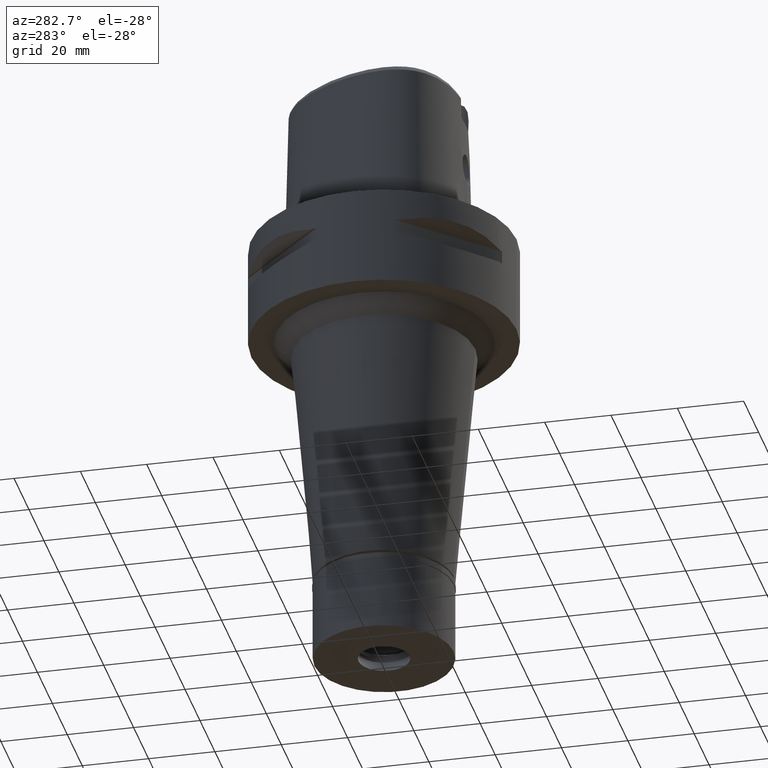
[diagram: clean part render]
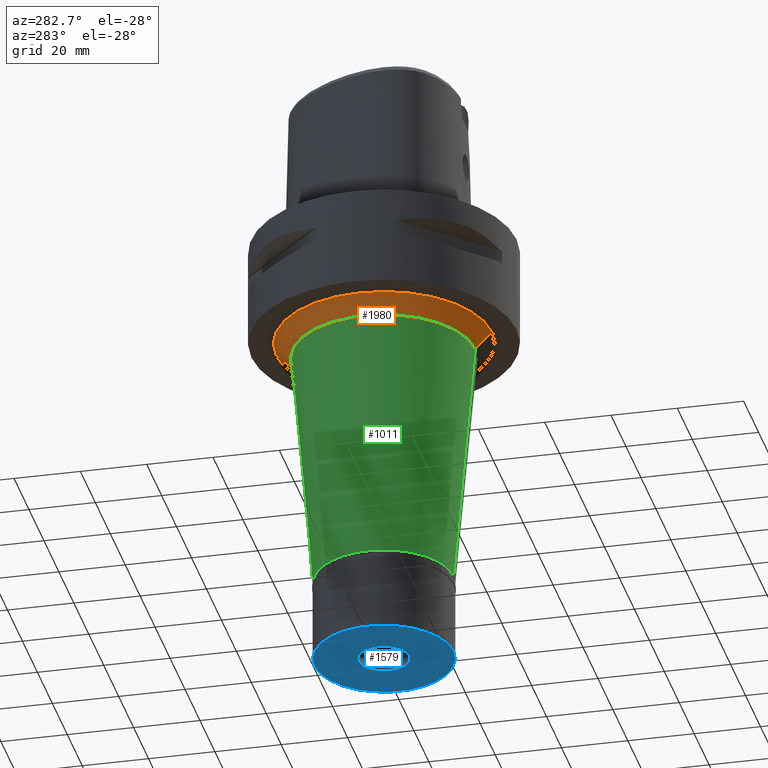
[diagram: same view with three faces highlighted in distinct colors, each labeled with its STEP entity id]
A machine part, auxiliary view with three faces highlighted in distinct colors.
Their STEP definitions:

[orange] entity #1980 — the highlighted conical surface has half-angle 45 deg.
#79 = DIRECTION ( 'NONE',  ( 0.0000000000000000000, 0.0000000000000000000, -1.000000000000000000 ) ) ;
#394 = EDGE_CURVE ( 'NONE', #1149, #4725, #4228, .T. ) ;
#438 = CARTESIAN_POINT ( 'NONE',  ( 0.0000000000000000000, -27.55290089809000165, -35.00000000000000000 ) ) ;
#446 = LINE ( 'NONE', #1669, #3144 ) ;
#828 = CARTESIAN_POINT ( 'NONE',  ( 0.0000000000000000000, 0.0000000000000000000, -35.00000000000000000 ) ) ;
#857 = EDGE_CURVE ( 'NONE', #4725, #2738, #446, .T. ) ;
#1149 = VERTEX_POINT ( 'NONE', #4615 ) ;
#1385 = CIRCLE ( 'NONE', #4226, 27.55290089809000165 ) ;
#1423 = CARTESIAN_POINT ( 'NONE',  ( 0.0000000000000000000, 0.0000000000000000000, -32.50000000000000000 ) ) ;
#1461 = ORIENTED_EDGE ( 'NONE', *, *, #857, .T. ) ;
#1562 = EDGE_CURVE ( 'NONE', #2077, #2738, #1385, .T. ) ;
#1669 = CARTESIAN_POINT ( 'NONE',  ( 0.0000000000000000000, 32.55290089809000165, -30.00000000000000000 ) ) ;
#1706 = CARTESIAN_POINT ( 'NONE',  ( 0.0000000000000000000, 0.0000000000000000000, -30.00000000000000000 ) ) ;
#1754 = DIRECTION ( 'NONE',  ( 0.0000000000000000000, 0.0000000000000000000, -1.000000000000000000 ) ) ;
#1870 = AXIS2_PLACEMENT_3D ( 'NONE', #1423, #2238, #2648 ) ;
#1980 = ADVANCED_FACE ( 'NONE', ( #5027 ), #4627, .T. ) ;
#2025 = DIRECTION ( 'NONE',  ( 0.0000000000000000000, -0.7071067811862974395, -0.7071067811867974839 ) ) ;
#2077 = VERTEX_POINT ( 'NONE', #438 ) ;
#2142 = CARTESIAN_POINT ( 'NONE',  ( 0.0000000000000000000, 27.55290089809000165, -35.00000000000000000 ) ) ;
#2238 = DIRECTION ( 'NONE',  ( 0.0000000000000000000, 0.0000000000000000000, 1.000000000000000000 ) ) ;
#2309 = DIRECTION ( 'NONE',  ( 0.0000000000000000000, 0.7071067811862974395, -0.7071067811867974839 ) ) ;
#2335 = ORIENTED_EDGE ( 'NONE', *, *, #1562, .F. ) ;
#2601 = CARTESIAN_POINT ( 'NONE',  ( 0.0000000000000000000, 32.55290089809000165, -30.00000000000000000 ) ) ;
#2640 = LINE ( 'NONE', #3902, #4624 ) ;
#2648 = DIRECTION ( 'NONE',  ( 0.0000000000000000000, 1.000000000000000000, 0.0000000000000000000 ) ) ;
#2738 = VERTEX_POINT ( 'NONE', #2142 ) ;
#2762 = ORIENTED_EDGE ( 'NONE', *, *, #4939, .F. ) ;
#3100 = EDGE_LOOP ( 'NONE', ( #2335, #2762, #4679, #1461 ) ) ;
#3144 = VECTOR ( 'NONE', #2025, 1000.000000000000114 ) ;
#3308 = AXIS2_PLACEMENT_3D ( 'NONE', #1706, #1754, #4170 ) ;
#3675 = DIRECTION ( 'NONE',  ( 0.0000000000000000000, -1.000000000000000000, 0.0000000000000000000 ) ) ;
#3902 = CARTESIAN_POINT ( 'NONE',  ( 0.0000000000000000000, -32.55290089809000165, -30.00000000000000000 ) ) ;
#4170 = DIRECTION ( 'NONE',  ( 0.0000000000000000000, -1.000000000000000000, 0.0000000000000000000 ) ) ;
#4226 = AXIS2_PLACEMENT_3D ( 'NONE', #828, #79, #3675 ) ;
#4228 = CIRCLE ( 'NONE', #3308, 32.55290089809000165 ) ;
#4615 = CARTESIAN_POINT ( 'NONE',  ( 0.0000000000000000000, -32.55290089809000165, -30.00000000000000000 ) ) ;
#4624 = VECTOR ( 'NONE', #2309, 1000.000000000000114 ) ;
#4627 = CONICAL_SURFACE ( 'NONE', #1870, 30.05290089809000165, 0.7853981633972997312 ) ;
#4679 = ORIENTED_EDGE ( 'NONE', *, *, #394, .T. ) ;
#4725 = VERTEX_POINT ( 'NONE', #2601 ) ;
#4939 = EDGE_CURVE ( 'NONE', #1149, #2077, #2640, .T. ) ;
#5027 = FACE_OUTER_BOUND ( 'NONE', #3100, .T. ) ;

[blue] entity #1579 — the highlighted planar face has unit normal (0, 0, -1).
#378 = VERTEX_POINT ( 'NONE', #4484 ) ;
#428 = ORIENTED_EDGE ( 'NONE', *, *, #3232, .F. ) ;
#720 = CARTESIAN_POINT ( 'NONE',  ( 0.0000000000000000000, 0.0000000000000000000, -24.29999999999999716 ) ) ;
#1094 = ORIENTED_EDGE ( 'NONE', *, *, #4274, .F. ) ;
#1251 = CARTESIAN_POINT ( 'NONE',  ( 0.0000000000000000000, 0.0000000000000000000, -24.29999999999999716 ) ) ;
#1302 = DIRECTION ( 'NONE',  ( 0.0000000000000000000, -1.000000000000000000, 0.0000000000000000000 ) ) ;
#1408 = CIRCLE ( 'NONE', #4339, 21.00000000000000000 ) ;
#1579 = ADVANCED_FACE ( 'NONE', ( #4875, #2021 ), #4827, .T. ) ;
#1621 = DIRECTION ( 'NONE',  ( 0.0000000000000000000, 0.0000000000000000000, -1.000000000000000000 ) ) ;
#1821 = AXIS2_PLACEMENT_3D ( 'NONE', #3666, #2846, #4096 ) ;
#1987 = EDGE_LOOP ( 'NONE', ( #2894, #428 ) ) ;
#1998 = DIRECTION ( 'NONE',  ( 0.0000000000000000000, 0.0000000000000000000, -1.000000000000000000 ) ) ;
#2021 = FACE_BOUND ( 'NONE', #2148, .T. ) ;
#2127 = DIRECTION ( 'NONE',  ( 0.0000000000000000000, -1.000000000000000000, 0.0000000000000000000 ) ) ;
#2148 = EDGE_LOOP ( 'NONE', ( #1094, #4916 ) ) ;
#2186 = VERTEX_POINT ( 'NONE', #3174 ) ;
#2394 = AXIS2_PLACEMENT_3D ( 'NONE', #4461, #4046, #2127 ) ;
#2747 = CARTESIAN_POINT ( 'NONE',  ( 0.0000000000000000000, -21.00000000000000000, -24.29999999999999716 ) ) ;
#2846 = DIRECTION ( 'NONE',  ( 0.0000000000000000000, 0.0000000000000000000, -1.000000000000000000 ) ) ;
#2894 = ORIENTED_EDGE ( 'NONE', *, *, #4654, .F. ) ;
#2935 = DIRECTION ( 'NONE',  ( 0.0000000000000000000, 0.0000000000000000000, 1.000000000000000000 ) ) ;
#2985 = CIRCLE ( 'NONE', #1821, 7.700000000000000178 ) ;
#3044 = CIRCLE ( 'NONE', #2394, 21.00000000000000000 ) ;
#3174 = CARTESIAN_POINT ( 'NONE',  ( 0.0000000000000000000, 7.700000000000000178, -24.29999999999999716 ) ) ;
#3211 = AXIS2_PLACEMENT_3D ( 'NONE', #3561, #1621, #3219 ) ;
#3219 = DIRECTION ( 'NONE',  ( 0.0000000000000000000, -1.000000000000000000, 0.0000000000000000000 ) ) ;
#3220 = VERTEX_POINT ( 'NONE', #3258 ) ;
#3232 = EDGE_CURVE ( 'NONE', #4729, #3220, #3044, .T. ) ;
#3258 = CARTESIAN_POINT ( 'NONE',  ( 0.0000000000000000000, 21.00000000000000000, -24.29999999999999716 ) ) ;
#3286 = CIRCLE ( 'NONE', #3211, 7.700000000000000178 ) ;
#3561 = CARTESIAN_POINT ( 'NONE',  ( 0.0000000000000000000, 0.0000000000000000000, -24.29999999999999716 ) ) ;
#3666 = CARTESIAN_POINT ( 'NONE',  ( 0.0000000000000000000, 0.0000000000000000000, -24.29999999999999716 ) ) ;
#4046 = DIRECTION ( 'NONE',  ( 0.0000000000000000000, 0.0000000000000000000, 1.000000000000000000 ) ) ;
#4096 = DIRECTION ( 'NONE',  ( 0.0000000000000000000, 1.000000000000000000, 0.0000000000000000000 ) ) ;
#4274 = EDGE_CURVE ( 'NONE', #2186, #378, #2985, .T. ) ;
#4339 = AXIS2_PLACEMENT_3D ( 'NONE', #720, #2935, #4543 ) ;
#4461 = CARTESIAN_POINT ( 'NONE',  ( 0.0000000000000000000, 0.0000000000000000000, -24.29999999999999716 ) ) ;
#4484 = CARTESIAN_POINT ( 'NONE',  ( 0.0000000000000000000, -7.700000000000000178, -24.29999999999999716 ) ) ;
#4543 = DIRECTION ( 'NONE',  ( 0.0000000000000000000, 1.000000000000000000, 0.0000000000000000000 ) ) ;
#4654 = EDGE_CURVE ( 'NONE', #3220, #4729, #1408, .T. ) ;
#4729 = VERTEX_POINT ( 'NONE', #2747 ) ;
#4827 = PLANE ( 'NONE',  #4889 ) ;
#4875 = FACE_OUTER_BOUND ( 'NONE', #1987, .T. ) ;
#4889 = AXIS2_PLACEMENT_3D ( 'NONE', #1251, #1998, #1302 ) ;
#4916 = ORIENTED_EDGE ( 'NONE', *, *, #5102, .F. ) ;
#5102 = EDGE_CURVE ( 'NONE', #378, #2186, #3286, .T. ) ;

[green] entity #1011 — the highlighted conical surface has half-angle 5 deg.
#67 = AXIS2_PLACEMENT_3D ( 'NONE', #4591, #3829, #198 ) ;
#79 = DIRECTION ( 'NONE',  ( 0.0000000000000000000, 0.0000000000000000000, -1.000000000000000000 ) ) ;
#144 = LINE ( 'NONE', #870, #4755 ) ;
#159 = CARTESIAN_POINT ( 'NONE',  ( 0.0000000000000000000, -21.00000000000000000, -109.8999999999999915 ) ) ;
#198 = DIRECTION ( 'NONE',  ( 0.0000000000000000000, 1.000000000000000000, 0.0000000000000000000 ) ) ;
#258 = CARTESIAN_POINT ( 'NONE',  ( 0.0000000000000000000, -27.55290089809000165, -35.00000000000000000 ) ) ;
#438 = CARTESIAN_POINT ( 'NONE',  ( 0.0000000000000000000, -27.55290089809000165, -35.00000000000000000 ) ) ;
#703 = DIRECTION ( 'NONE',  ( 0.0000000000000000000, 0.08715574274764407992, -0.9961946980917467664 ) ) ;
#714 = VERTEX_POINT ( 'NONE', #4053 ) ;
#828 = CARTESIAN_POINT ( 'NONE',  ( 0.0000000000000000000, 0.0000000000000000000, -35.00000000000000000 ) ) ;
#870 = CARTESIAN_POINT ( 'NONE',  ( 0.0000000000000000000, 27.55290089809000165, -35.00000000000000000 ) ) ;
#990 = FACE_OUTER_BOUND ( 'NONE', #3997, .T. ) ;
#1011 = ADVANCED_FACE ( 'NONE', ( #990 ), #3388, .T. ) ;
#1171 = CIRCLE ( 'NONE', #4092, 21.00000000000000000 ) ;
#1385 = CIRCLE ( 'NONE', #4226, 27.55290089809000165 ) ;
#1450 = ORIENTED_EDGE ( 'NONE', *, *, #3004, .F. ) ;
#1562 = EDGE_CURVE ( 'NONE', #2077, #2738, #1385, .T. ) ;
#1632 = VECTOR ( 'NONE', #703, 1000.000000000000114 ) ;
#1654 = CARTESIAN_POINT ( 'NONE',  ( 0.0000000000000000000, 0.0000000000000000000, -109.8999999999999915 ) ) ;
#1703 = DIRECTION ( 'NONE',  ( 0.0000000000000000000, 1.000000000000000000, 0.0000000000000000000 ) ) ;
#2077 = VERTEX_POINT ( 'NONE', #438 ) ;
#2142 = CARTESIAN_POINT ( 'NONE',  ( 0.0000000000000000000, 27.55290089809000165, -35.00000000000000000 ) ) ;
#2469 = DIRECTION ( 'NONE',  ( 0.0000000000000000000, 0.0000000000000000000, 1.000000000000000000 ) ) ;
#2682 = VERTEX_POINT ( 'NONE', #159 ) ;
#2738 = VERTEX_POINT ( 'NONE', #2142 ) ;
#3004 = EDGE_CURVE ( 'NONE', #2077, #2682, #3948, .T. ) ;
#3157 = ORIENTED_EDGE ( 'NONE', *, *, #4183, .T. ) ;
#3388 = CONICAL_SURFACE ( 'NONE', #67, 24.27645044904999949, 0.08726646259969973729 ) ;
#3675 = DIRECTION ( 'NONE',  ( 0.0000000000000000000, -1.000000000000000000, 0.0000000000000000000 ) ) ;
#3829 = DIRECTION ( 'NONE',  ( 0.0000000000000000000, 0.0000000000000000000, 1.000000000000000000 ) ) ;
#3948 = LINE ( 'NONE', #258, #1632 ) ;
#3997 = EDGE_LOOP ( 'NONE', ( #4620, #1450, #4138, #3157 ) ) ;
#4053 = CARTESIAN_POINT ( 'NONE',  ( 0.0000000000000000000, 21.00000000000000000, -109.8999999999999915 ) ) ;
#4092 = AXIS2_PLACEMENT_3D ( 'NONE', #1654, #2469, #1703 ) ;
#4138 = ORIENTED_EDGE ( 'NONE', *, *, #1562, .T. ) ;
#4182 = EDGE_CURVE ( 'NONE', #714, #2682, #1171, .T. ) ;
#4183 = EDGE_CURVE ( 'NONE', #2738, #714, #144, .T. ) ;
#4226 = AXIS2_PLACEMENT_3D ( 'NONE', #828, #79, #3675 ) ;
#4591 = CARTESIAN_POINT ( 'NONE',  ( 0.0000000000000000000, 0.0000000000000000000, -72.45000000000000284 ) ) ;
#4620 = ORIENTED_EDGE ( 'NONE', *, *, #4182, .T. ) ;
#4755 = VECTOR ( 'NONE', #4866, 1000.000000000000114 ) ;
#4866 = DIRECTION ( 'NONE',  ( 0.0000000000000000000, -0.08715574274764407992, -0.9961946980917467664 ) ) ;